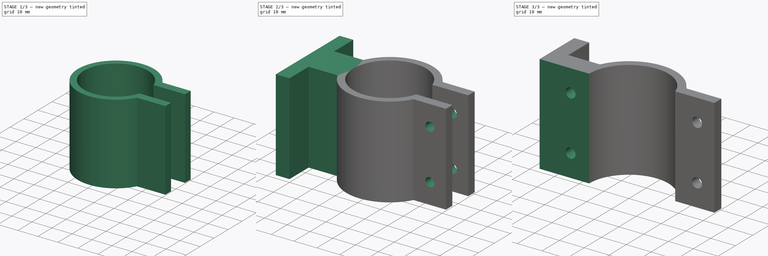
[diagram: build sequence overview — one tinted view per stage of 3, left to right]
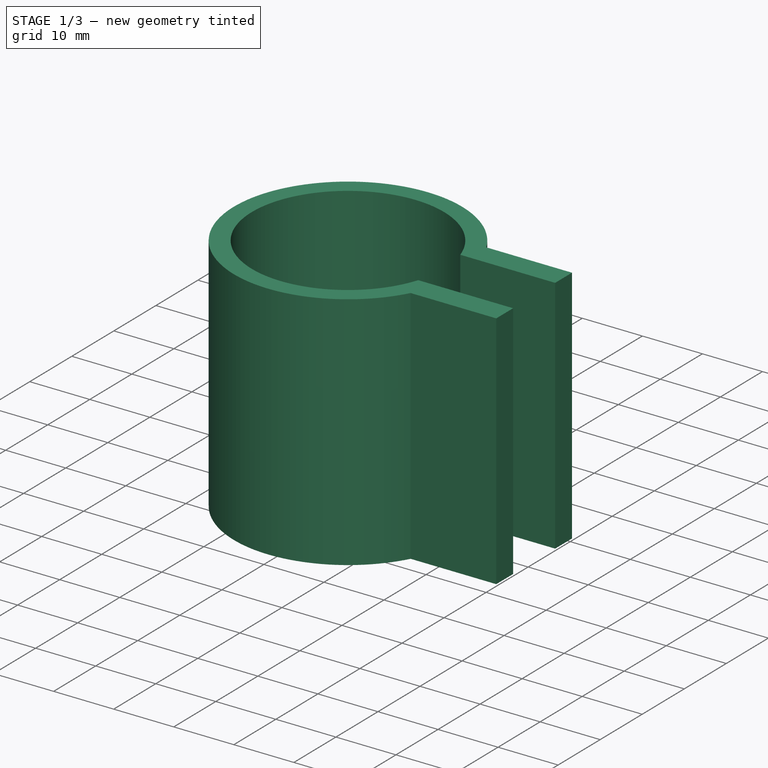
[diagram: stage 1 of 3 — iso view after this stage's code; geometry added in this stage tinted green]
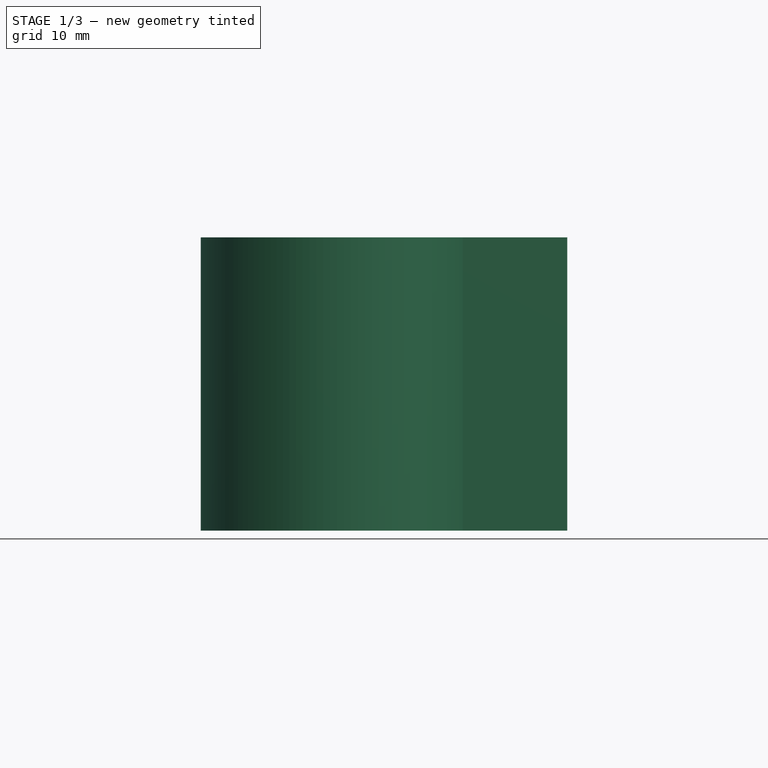
[diagram: stage 1 of 3 — front view after this stage's code; geometry added in this stage tinted green]
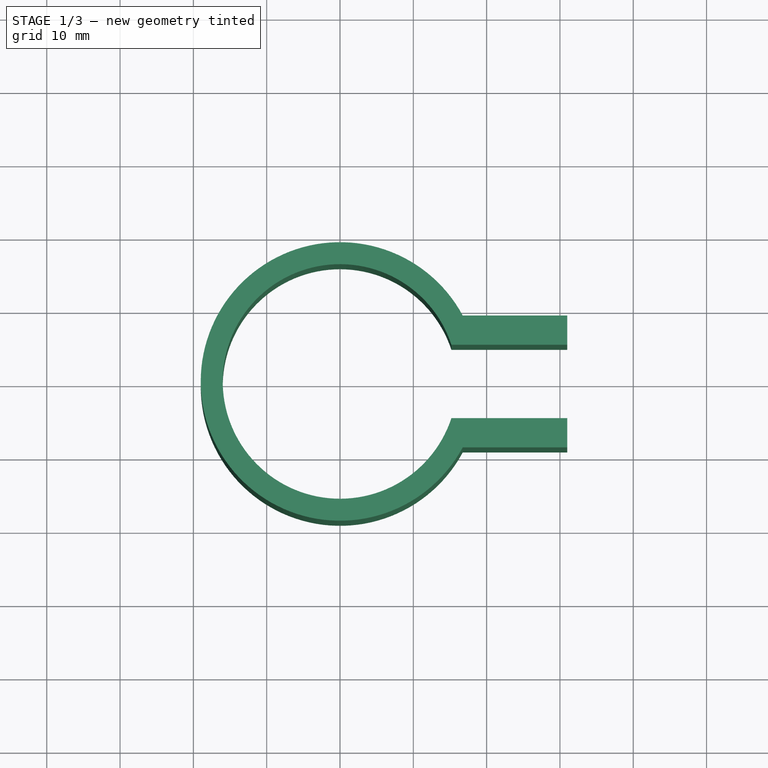
[diagram: stage 1 of 3 — top view after this stage's code; geometry added in this stage tinted green]
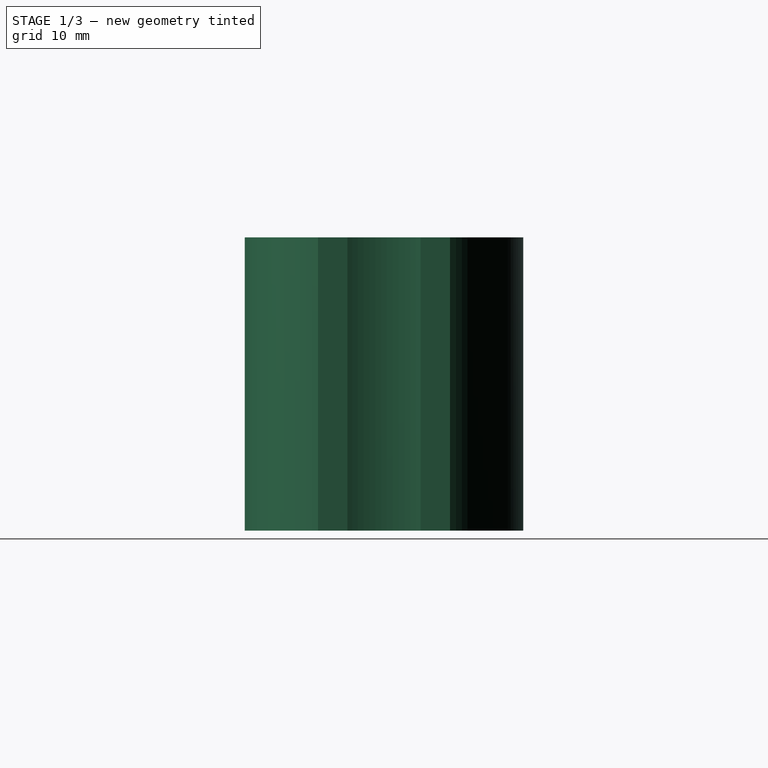
[diagram: stage 1 of 3 — right view after this stage's code; geometry added in this stage tinted green]
FCSTD DOCUMENT  (FreeCAD 1.0R38641 +468 (Git))
Label: TripodGrabber
License: All rights reserved
LicenseURL: https://en.wikipedia.org/wiki/All_rights_reserved
objects: Sketcher::SketchObject×8, PartDesign::Pocket×5, PartDesign::Pad×3, PartDesign::Body×1
note: 41 computed .brp shape members not serialized (recipe doc carries the construction recipe); baked Part::Feature solids carry a one-line shape summary decoded from their .brp

FEATURE [Sketcher::SketchObject] Sketch209
  ArcFitTolerance = 1e-06
  AttachmentSupport = -> [XY_Plane024]
  FullyConstrained = true
  MakeInternals = false
  MapMode = 5
  sketch-geometry (2):
    g0: Circle CenterX=50 CenterY=50 CenterZ=0 NormalX=0 NormalY=0 NormalZ=1 AngleXU=0 Radius=16
    g1: Circle CenterX=50 CenterY=50 CenterZ=0 NormalX=0 NormalY=0 NormalZ=1 AngleXU=0 Radius=19
  constraints (5):
    c: Diameter(g0) = 32
    c: DistanceX(g-1,g0) = 50
    c: DistanceY(g-1,g0) = 50
    c: Diameter(g1) = 38
    c: Coincident(g1,g0)
FEATURE [PartDesign::Pad] Pad104
  Direction = (0,0,1)
  Length = 40
  Length2 = 10
  Profile = -> Sketch209
  ReferenceAxis = -> Sketch209 [N_Axis]
  Refine = true
  Suppressed = false
  Type = 0
FEATURE [Sketcher::SketchObject] Sketch210
  ArcFitTolerance = 1e-06
  AttachmentSupport = -> [XY_Plane024]
  FullyConstrained = true
  MakeInternals = false
  MapMode = 5
  sketch-geometry (4):
    g0: LineSegment StartX=50 StartY=55 StartZ=0 EndX=50 EndY=45 EndZ=0
    g1: LineSegment StartX=50 StartY=45 StartZ=0 EndX=88 EndY=45 EndZ=0
    g2: LineSegment StartX=88 StartY=45 StartZ=0 EndX=88 EndY=55 EndZ=0
    g3: LineSegment StartX=88 StartY=55 StartZ=0 EndX=50 EndY=55 EndZ=0
  constraints (12):
    c: Coincident(g0,g1)
    c: Coincident(g1,g2)
    c: Coincident(g2,g3)
    c: Coincident(g3,g0)
    c: Vertical(g0)
    c: Vertical(g2)
    c: Horizontal(g1)
    c: Horizontal(g3)
    c: Distance(g0,g2) = 38
    c: Distance(g1,g3) = 10
    c: DistanceY(g-1,g0) = 45
    c: DistanceX(g-1,g0) = 50
FEATURE [PartDesign::Pocket] Pocket121
  BaseFeature = -> Pad104
  Direction = (0,0,-1)
  Length = 40
  Length2 = 5
  Profile = -> Sketch210
  ReferenceAxis = -> Sketch210 [N_Axis]
  Refine = true
  Reversed = true
  Suppressed = false
  Type = 0
FEATURE [Sketcher::SketchObject] Sketch211
  ArcFitTolerance = 1e-06
  AttachmentSupport = -> [XY_Plane024]
  FullyConstrained = true
  MakeInternals = false
  MapMode = 5
  sketch-geometry (8):
    g0: LineSegment StartX=81 StartY=55 StartZ=0 EndX=81 EndY=59 EndZ=0
    g1: LineSegment StartX=81 StartY=59 StartZ=0 EndX=66 EndY=59 EndZ=0
    g2: LineSegment StartX=66 StartY=59 StartZ=0 EndX=66 EndY=55 EndZ=0
    g3: LineSegment StartX=66 StartY=55 StartZ=0 EndX=81 EndY=55 EndZ=0
    g4: LineSegment StartX=66 StartY=45 StartZ=0 EndX=66 EndY=41 EndZ=0
    g5: LineSegment StartX=66 StartY=41 StartZ=0 EndX=81 EndY=41 EndZ=0
    g6: LineSegment StartX=81 StartY=41 StartZ=0 EndX=81 EndY=45 EndZ=0
    g7: LineSegment StartX=81 StartY=45 StartZ=0 EndX=66 EndY=45 EndZ=0
  constraints (24):
    c: Coincident(g0,g1)
    c: Coincident(g1,g2)
    c: Coincident(g2,g3)
    c: Coincident(g3,g0)
    c: Vertical(g0)
    c: Vertical(g2)
    c: Horizontal(g1)
    c: Horizontal(g3)
    c: Distance(g0,g2) = 15
    c: Distance(g1,g3) = 4
    c: DistanceX(g-1,g2) = 66
    c: DistanceY(g-1,g2) = 55
    c: Coincident(g4,g5)
    c: Coincident(g5,g6)
    c: Coincident(g6,g7)
    c: Coincident(g7,g4)
    c: Vertical(g4)
    c: Vertical(g6)
    c: Horizontal(g5)
    c: Horizontal(g7)
    c: Distance(g4,g6) = 15
    c: Distance(g5,g7) = 4
    c: DistanceX(g-1,g4) = 66
    c: DistanceY(g-1,g4) = 45
FEATURE [PartDesign::Pad] Pad105
  BaseFeature = -> Pocket121
  Direction = (0,0,1)
  Length = 40
  Length2 = 10
  Profile = -> Sketch211
  ReferenceAxis = -> Sketch211 [N_Axis]
  Refine = true
  Suppressed = false
  Type = 0
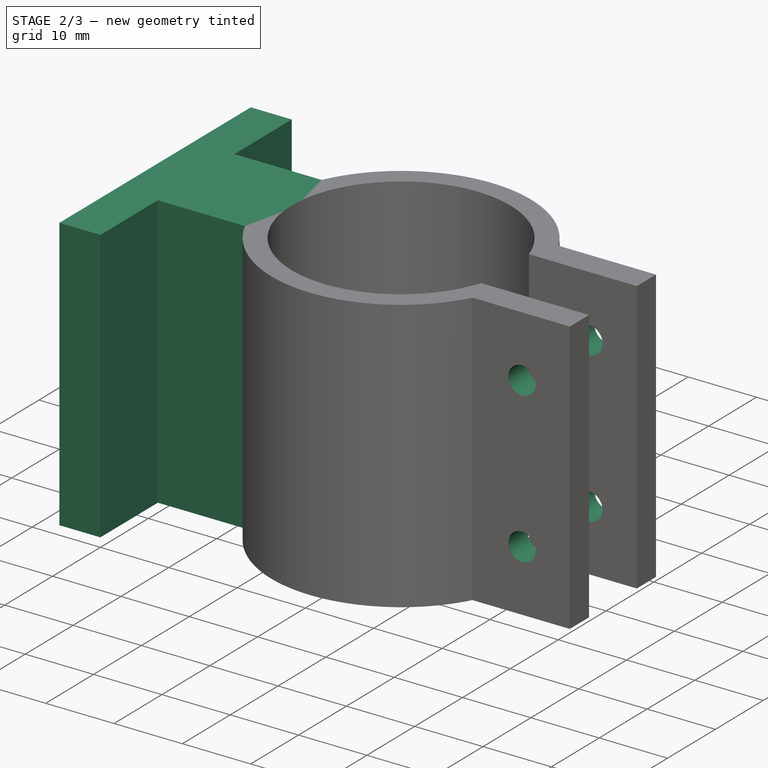
[diagram: stage 2 of 3 — iso view after this stage's code; geometry added in this stage tinted green]
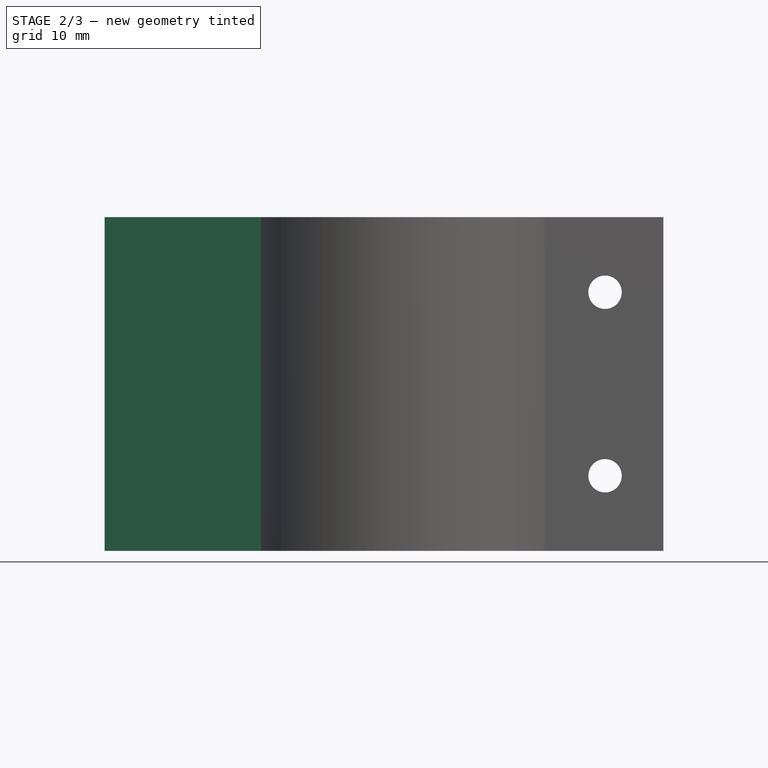
[diagram: stage 2 of 3 — front view after this stage's code; geometry added in this stage tinted green]
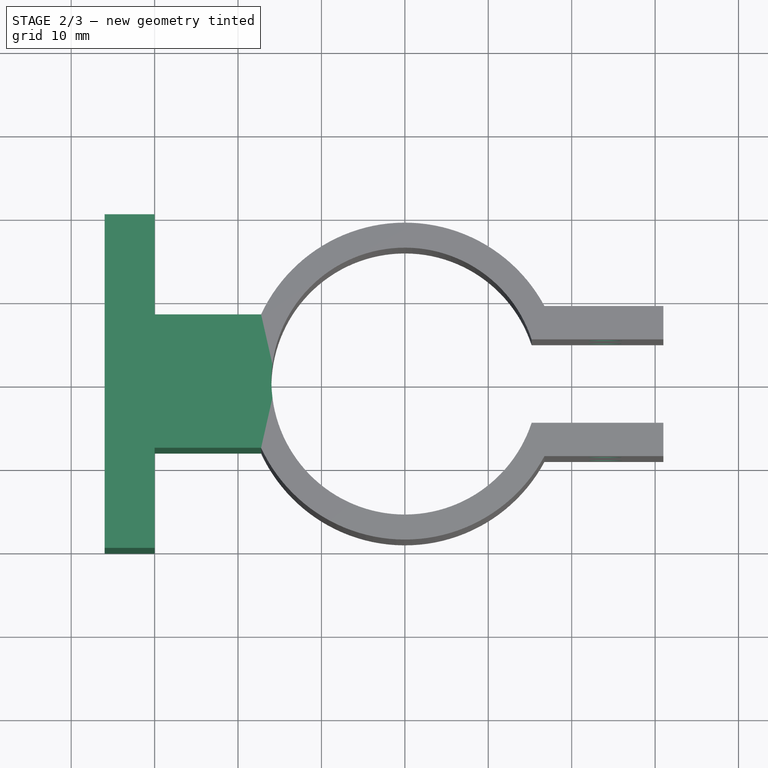
[diagram: stage 2 of 3 — top view after this stage's code; geometry added in this stage tinted green]
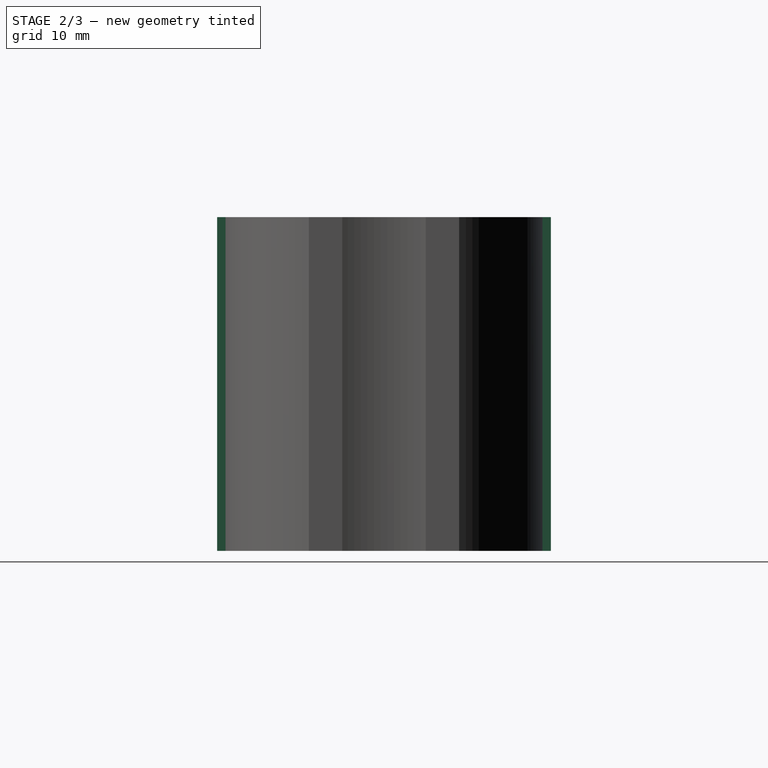
[diagram: stage 2 of 3 — right view after this stage's code; geometry added in this stage tinted green]
FEATURE [Sketcher::SketchObject] Sketch212
  ArcFitTolerance = 1e-06
  AttachmentSupport = -> [XZ_Plane024]
  FullyConstrained = true
  MakeInternals = false
  MapMode = 5
  Placement = pos=(0,0,0) rot=(1,0,0;1.5708rad)
  sketch-geometry (2):
    g0: Circle CenterX=74 CenterY=31 CenterZ=0 NormalX=0 NormalY=0 NormalZ=1 AngleXU=0 Radius=2
    g1: Circle CenterX=74 CenterY=9 CenterZ=0 NormalX=0 NormalY=0 NormalZ=1 AngleXU=0 Radius=2
  constraints (6):
    c: Diameter(g0) = 4
    c: Diameter(g1) = 4
    c: DistanceX(g-1,g0) = 74
    c: DistanceY(g-1,g0) = 31
    c: DistanceY(g-1,g1) = 9
    c: DistanceX(g0,g1) = 0
FEATURE [PartDesign::Pocket] Pocket122
  BaseFeature = -> Pad105
  Direction = (0,1,-2e-16)
  Length = 5
  Length2 = 5
  Profile = -> Sketch212
  ReferenceAxis = -> Sketch212 [N_Axis]
  Refine = true
  Suppressed = false
  Type = 1
FEATURE [Sketcher::SketchObject] Sketch213
  ArcFitTolerance = 1e-06
  AttachmentSupport = -> [XY_Plane024]
  FullyConstrained = true
  MakeInternals = false
  MapMode = 5
  sketch-geometry (8):
    g0: LineSegment StartX=14 StartY=70 StartZ=0 EndX=14 EndY=30 EndZ=0
    g1: LineSegment StartX=14 StartY=30 StartZ=0 EndX=20 EndY=30 EndZ=0
    g2: LineSegment StartX=20 StartY=30 StartZ=0 EndX=20 EndY=70 EndZ=0
    g3: LineSegment StartX=20 StartY=70 StartZ=0 EndX=14 EndY=70 EndZ=0
    g4: LineSegment StartX=20 StartY=58 StartZ=0 EndX=20 EndY=42 EndZ=0
    g5: LineSegment StartX=20 StartY=42 StartZ=0 EndX=33 EndY=42 EndZ=0
    g6: LineSegment StartX=33 StartY=42 StartZ=0 EndX=33 EndY=58 EndZ=0
    g7: LineSegment StartX=33 StartY=58 StartZ=0 EndX=20 EndY=58 EndZ=0
  constraints (24):
    c: Coincident(g0,g1)
    c: Coincident(g1,g2)
    c: Coincident(g2,g3)
    c: Coincident(g3,g0)
    c: Vertical(g0)
    c: Vertical(g2)
    c: Horizontal(g1)
    c: Horizontal(g3)
    c: Distance(g0,g2) = 6
    c: Distance(g1,g3) = 40
    c: DistanceX(g-1,g2) = 20
    c: DistanceY(g-1,g1) = 30
    c: Coincident(g4,g5)
    c: Coincident(g5,g6)
    c: Coincident(g6,g7)
    c: Coincident(g7,g4)
    c: Vertical(g4)
    c: Vertical(g6)
    c: Horizontal(g5)
    c: Horizontal(g7)
    c: Distance(g4,g6) = 13
    c: Distance(g5,g7) = 16
    c: DistanceY(g-1,g4) = 42
    c: DistanceX(g-1,g4) = 20
FEATURE [PartDesign::Pad] Pad106
  BaseFeature = -> Pocket122
  Direction = (0,0,1)
  Length = 40
  Length2 = 10
  Profile = -> Sketch213
  ReferenceAxis = -> Sketch213 [N_Axis]
  Refine = true
  Suppressed = false
  Type = 0
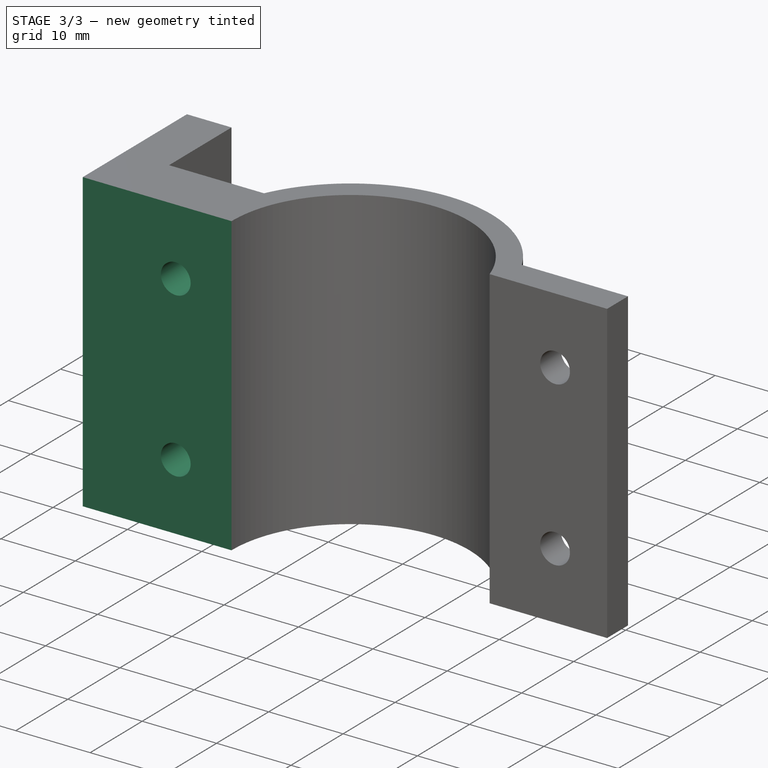
[diagram: stage 3 of 3 — iso view after this stage's code; geometry added in this stage tinted green]
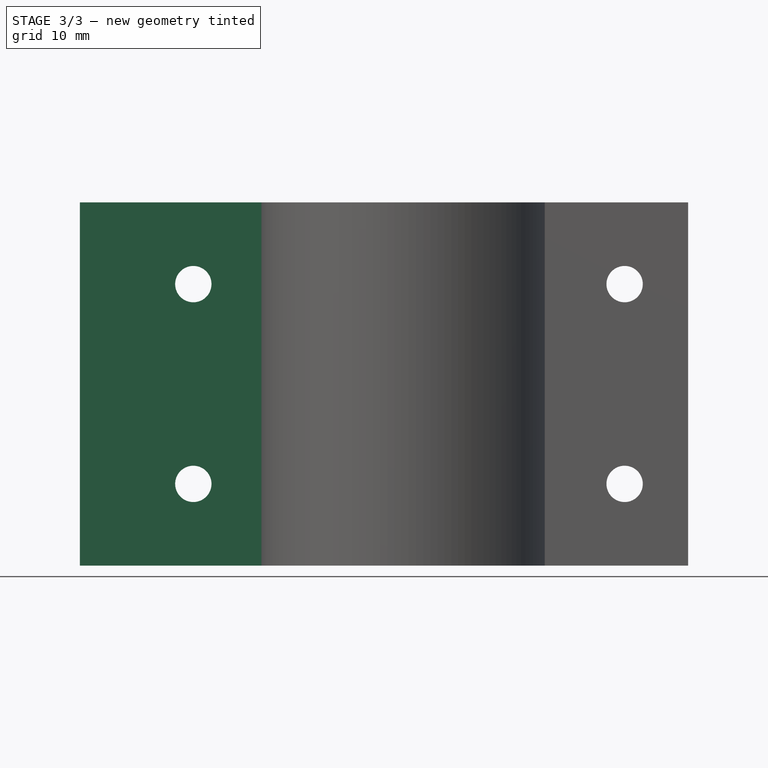
[diagram: stage 3 of 3 — front view after this stage's code; geometry added in this stage tinted green]
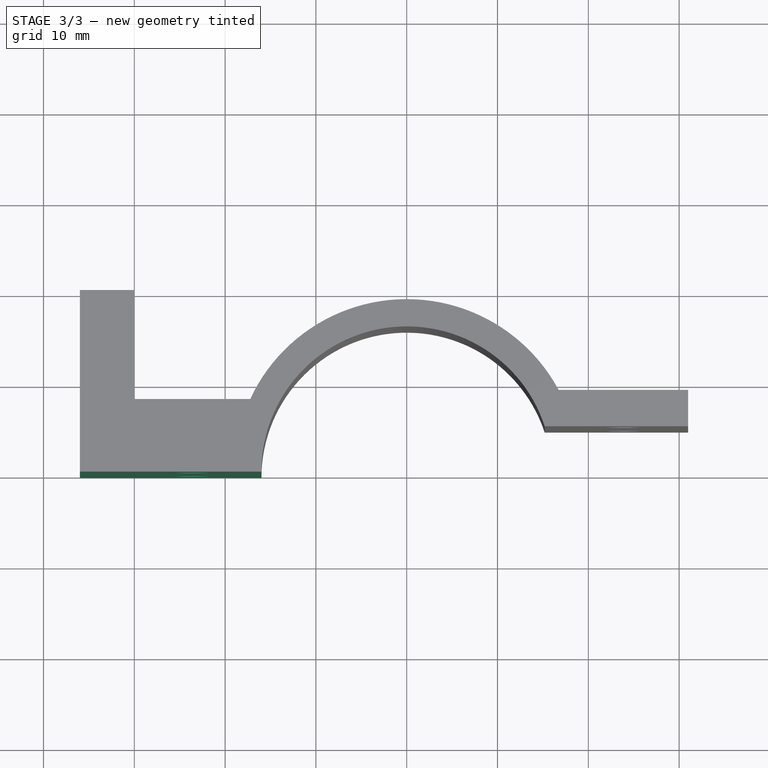
[diagram: stage 3 of 3 — top view after this stage's code; geometry added in this stage tinted green]
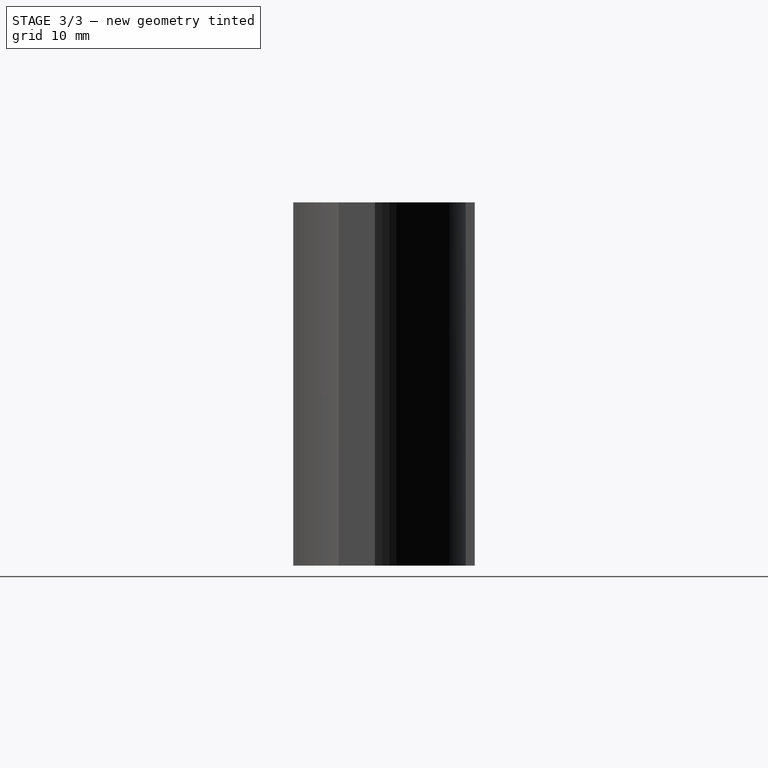
[diagram: stage 3 of 3 — right view after this stage's code; geometry added in this stage tinted green]
FEATURE [Sketcher::SketchObject] Sketch214
  ArcFitTolerance = 1e-06
  AttachmentSupport = -> [Pad106]
  FullyConstrained = true
  MakeInternals = false
  MapMode = 5
  Placement = pos=(14,0,0) rot=(0.57735,-0.57735,-0.57735;2.0944rad)
  sketch-geometry (2):
    g0: Circle CenterX=-65 CenterY=20 CenterZ=0 NormalX=0 NormalY=0 NormalZ=1 AngleXU=0 Radius=2
    g1: Circle CenterX=-35 CenterY=20 CenterZ=0 NormalX=0 NormalY=0 NormalZ=1 AngleXU=0 Radius=2
  constraints (6):
    c: Diameter(g0) = 4
    c: Diameter(g1) = 4
    c: DistanceX(g0,g1) = 30
    c: DistanceX(g1,g-1) = 35
    c: DistanceY(g-1,g1) = 20
    c: DistanceY(g1,g0) = 0
FEATURE [PartDesign::Pocket] Pocket123
  BaseFeature = -> Pad106
  Direction = (1,0,0)
  Length = 6
  Length2 = 5
  Profile = -> Sketch214
  ReferenceAxis = -> Sketch214 [N_Axis]
  Refine = true
  Suppressed = false
  Type = 0
FEATURE [Sketcher::SketchObject] Sketch
  ArcFitTolerance = 1e-06
  AttachmentSupport = -> [XY_Plane024]
  FullyConstrained = false
  MakeInternals = false
  MapMode = 5
  sketch-geometry (4):
    g0: LineSegment StartX=3.28406 StartY=50 StartZ=0 EndX=3.28406 EndY=20 EndZ=0
    g1: LineSegment StartX=3.28406 StartY=20 StartZ=0 EndX=93.2841 EndY=20 EndZ=0
    g2: LineSegment StartX=93.2841 StartY=20 StartZ=0 EndX=93.2841 EndY=50 EndZ=0
    g3: LineSegment StartX=93.2841 StartY=50 StartZ=0 EndX=3.28406 EndY=50 EndZ=0
  constraints (11):
    c: Coincident(g0,g1)
    c: Coincident(g1,g2)
    c: Coincident(g2,g3)
    c: Coincident(g3,g0)
    c: Vertical(g0)
    c: Vertical(g2)
    c: Horizontal(g1)
    c: Horizontal(g3)
    c: Distance(g0,g2) = 90
    c: Distance(g1,g3) = 30
    c: DistanceY(g-1,g0) = 50
FEATURE [PartDesign::Pocket] Pocket
  BaseFeature = -> Pocket123
  Direction = (0,0,-1)
  Length = 5
  Length2 = 5
  Profile = -> Sketch
  ReferenceAxis = -> Sketch [N_Axis]
  Refine = true
  Reversed = true
  Suppressed = false
  Type = 1
FEATURE [Sketcher::SketchObject] Sketch215
  ArcFitTolerance = 1e-06
  AttachmentSupport = -> [XZ_Plane024]
  FullyConstrained = true
  MakeInternals = false
  MapMode = 5
  Placement = pos=(0,0,0) rot=(1,0,0;1.5708rad)
  sketch-geometry (2):
    g0: Circle CenterX=26.5 CenterY=31 CenterZ=0 NormalX=0 NormalY=0 NormalZ=1 AngleXU=0 Radius=2
    g1: Circle CenterX=26.5 CenterY=9 CenterZ=0 NormalX=0 NormalY=0 NormalZ=1 AngleXU=0 Radius=2
  constraints (6):
    c: Diameter(g0) = 4
    c: Diameter(g1) = 4
    c: DistanceX(g0,g1) = 0
    c: DistanceX(g-1,g1) = 26.5
    c: DistanceY(g-1,g1) = 9
    c: DistanceY(g1,g0) = 22
FEATURE [PartDesign::Pocket] Pocket124
  BaseFeature = -> Pocket
  Direction = (0,1,-2e-16)
  Length = 5
  Length2 = 5
  Profile = -> Sketch215
  ReferenceAxis = -> Sketch215 [N_Axis]
  Refine = true
  Suppressed = false
  Type = 1
FEATURE [PartDesign::Body] Body024  label="Tripod-Grabber"
  AllowCompound = false
  Group = -> [Sketch209,Pad104,Sketch210,Pocket121,Sketch211,Pad105,Sketch212,Pocket122,Sketch213,Pad106,Sketch214,Pocket123,Sketch,Pocket,Sketch215,Pocket124]
  Origin = -> Origin024
  Tip = -> Pocket124
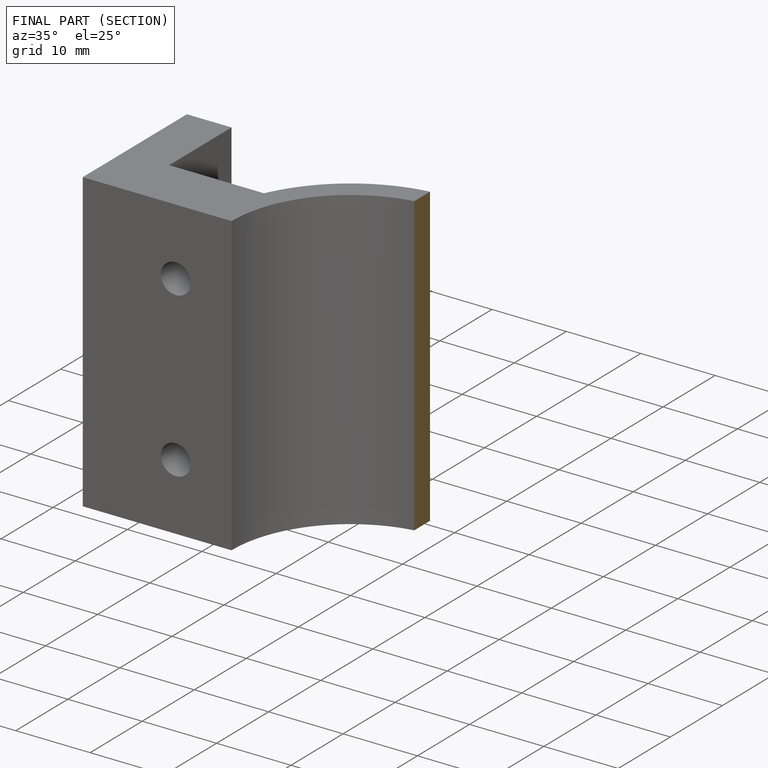
[diagram: finished part — half-section view (interior)]
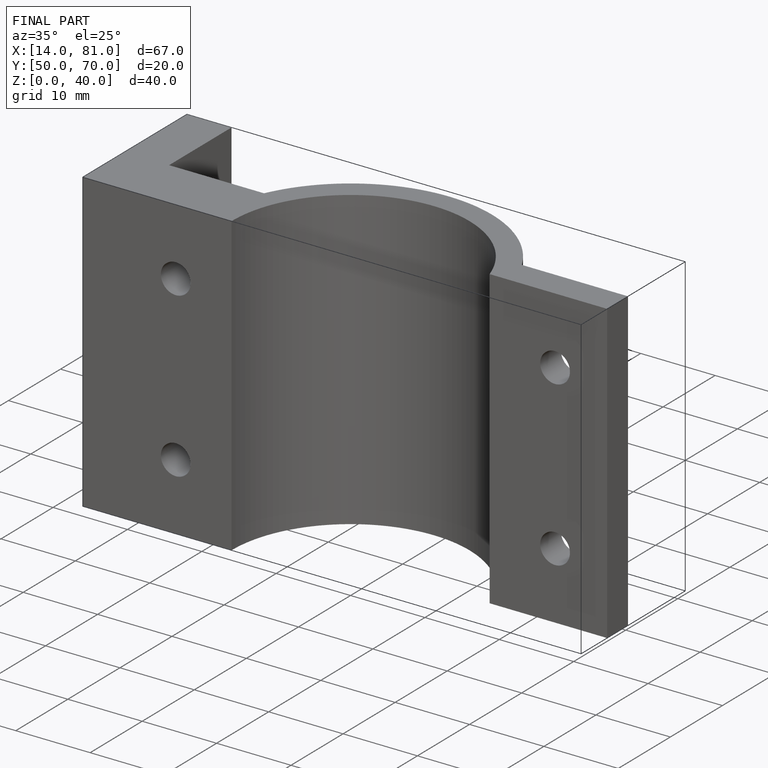
[diagram: finished part — iso view with bounding-box wireframe]
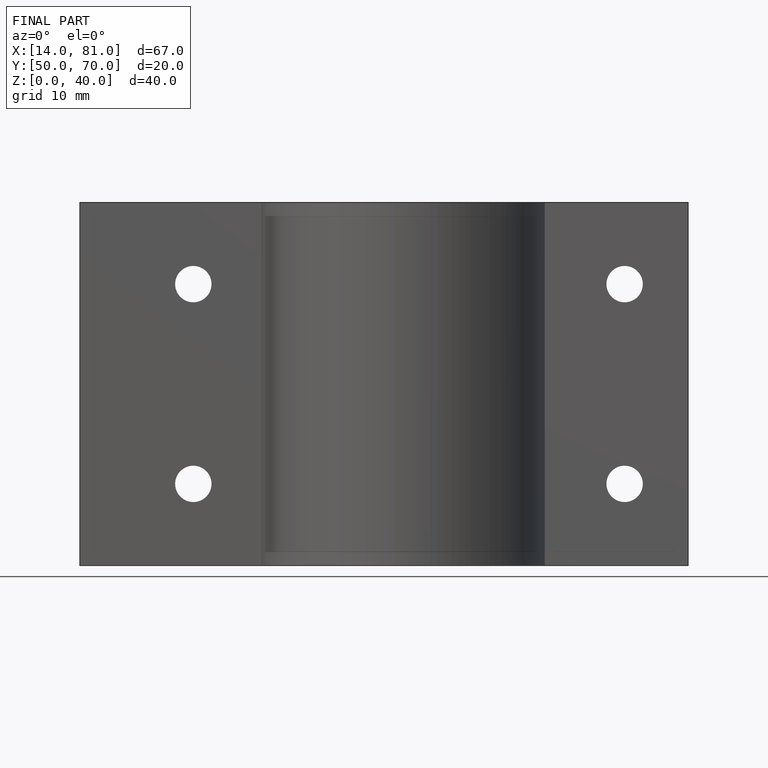
[diagram: finished part — front view with bounding-box wireframe]
